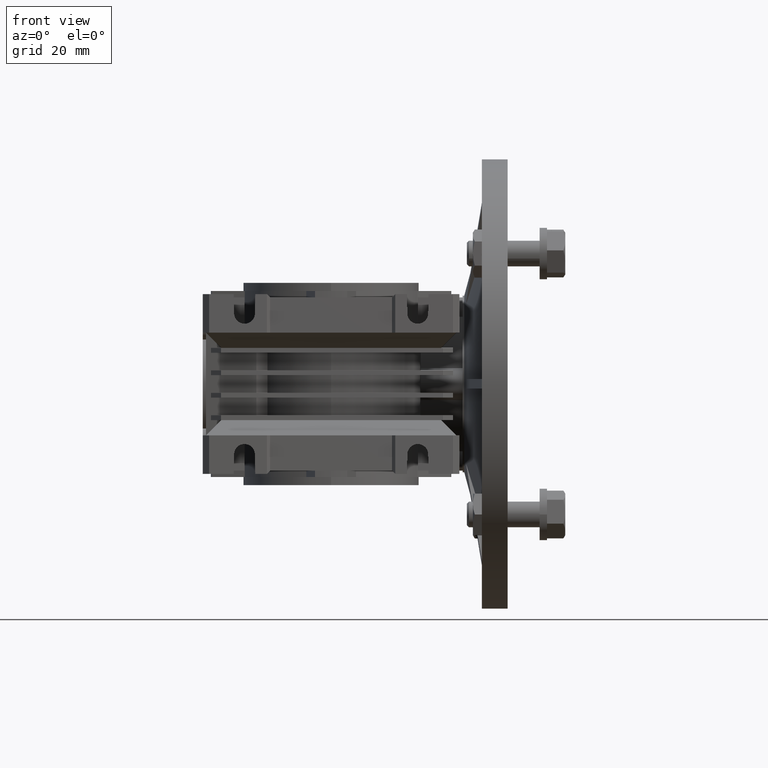
[diagram: clean part render]
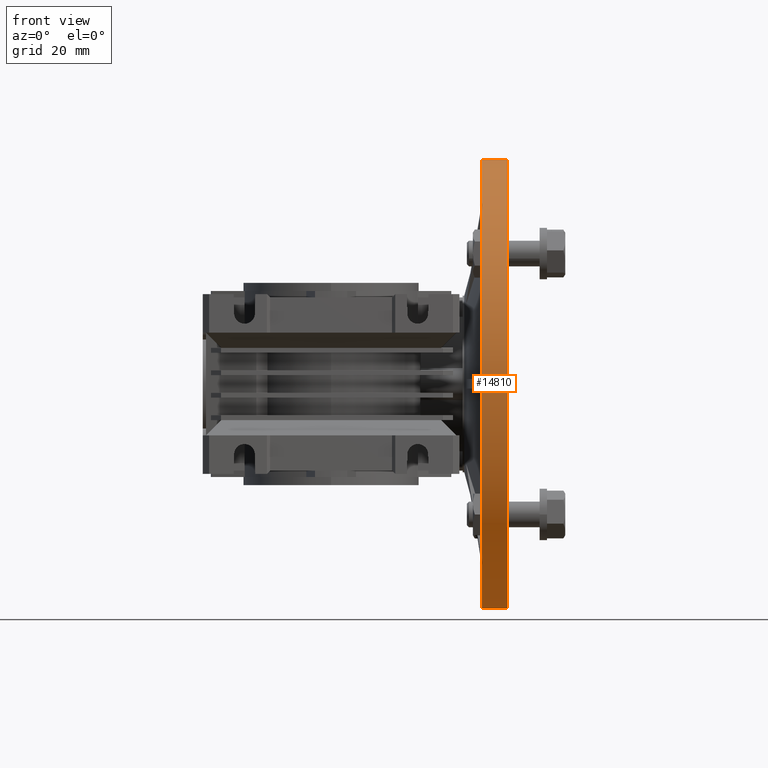
[diagram: same view with one face highlighted and labeled with its STEP entity id]
A machine part, front view. The second image highlights one B-rep face of the part: STEP entity #14810.
In plain terms, the highlighted cylindrical surface (partial cylindrical patch) has radius 70 mm, axis along (-1, 0, 0).
Its self-contained STEP definition (entity closure, byte-faithful):
#659 = AXIS2_PLACEMENT_3D ( 'NONE', #16169, #26061, #10659 ) ;
#1831 = AXIS2_PLACEMENT_3D ( 'NONE', #13651, #14128, #28397 ) ;
#3561 = CARTESIAN_POINT ( 'NONE',  ( 55.00000000000000711, 30.00000000000000000, 70.00000000000000000 ) ) ;
#4909 = CARTESIAN_POINT ( 'NONE',  ( 47.00000000000000000, 30.00000000000000711, -70.00000000000000000 ) ) ;
#5457 = VERTEX_POINT ( 'NONE', #29016 ) ;
#6257 = CYLINDRICAL_SURFACE ( 'NONE', #659, 70.00000000000000000 ) ;
#8261 = LINE ( 'NONE', #30963, #30219 ) ;
#8713 = FACE_OUTER_BOUND ( 'NONE', #9855, .T. ) ;
#9704 = DIRECTION ( 'NONE',  ( 0.000000000000000000, 0.000000000000000000, 1.000000000000000000 ) ) ;
#9855 = EDGE_LOOP ( 'NONE', ( #25734, #19893, #13643, #22945 ) ) ;
#10252 = VERTEX_POINT ( 'NONE', #4909 ) ;
#10659 = DIRECTION ( 'NONE',  ( 0.000000000000000000, 0.000000000000000000, 1.000000000000000000 ) ) ;
#11178 = DIRECTION ( 'NONE',  ( -1.000000000000000000, 0.000000000000000000, 0.000000000000000000 ) ) ;
#11203 = EDGE_CURVE ( 'NONE', #29980, #5457, #24642, .T. ) ;
#11843 = CARTESIAN_POINT ( 'NONE',  ( 47.00000000000000000, 30.00000000000000000, 0.000000000000000000 ) ) ;
#13643 = ORIENTED_EDGE ( 'NONE', *, *, #15336, .T. ) ;
#13651 = CARTESIAN_POINT ( 'NONE',  ( 55.00000000000000711, 30.00000000000000000, 0.000000000000000000 ) ) ;
#14128 = DIRECTION ( 'NONE',  ( -1.000000000000000000, 0.000000000000000000, 0.000000000000000000 ) ) ;
#14173 = CIRCLE ( 'NONE', #29181, 70.00000000000000000 ) ;
#14810 = ADVANCED_FACE ( 'NONE', ( #8713 ), #6257, .T. ) ;
#15266 = CARTESIAN_POINT ( 'NONE',  ( 55.00000000000000711, 30.00000000000000711, -70.00000000000000000 ) ) ;
#15336 = EDGE_CURVE ( 'NONE', #5457, #27187, #25475, .T. ) ;
#16169 = CARTESIAN_POINT ( 'NONE',  ( 55.00000000000000711, 30.00000000000000000, 0.000000000000000000 ) ) ;
#16232 = DIRECTION ( 'NONE',  ( -1.000000000000000000, 0.000000000000000000, 0.000000000000000000 ) ) ;
#16865 = EDGE_CURVE ( 'NONE', #29980, #10252, #8261, .T. ) ;
#17480 = DIRECTION ( 'NONE',  ( 1.000000000000000000, 0.000000000000000000, 0.000000000000000000 ) ) ;
#19266 = VECTOR ( 'NONE', #16232, 1000.000000000000000 ) ;
#19893 = ORIENTED_EDGE ( 'NONE', *, *, #11203, .T. ) ;
#22945 = ORIENTED_EDGE ( 'NONE', *, *, #31269, .T. ) ;
#24642 = CIRCLE ( 'NONE', #1831, 70.00000000000000000 ) ;
#25475 = LINE ( 'NONE', #3561, #19266 ) ;
#25734 = ORIENTED_EDGE ( 'NONE', *, *, #16865, .F. ) ;
#26061 = DIRECTION ( 'NONE',  ( -1.000000000000000000, 0.000000000000000000, 0.000000000000000000 ) ) ;
#26091 = CARTESIAN_POINT ( 'NONE',  ( 47.00000000000000000, 30.00000000000000000, 70.00000000000000000 ) ) ;
#27187 = VERTEX_POINT ( 'NONE', #26091 ) ;
#28397 = DIRECTION ( 'NONE',  ( 0.000000000000000000, 0.000000000000000000, 1.000000000000000000 ) ) ;
#29016 = CARTESIAN_POINT ( 'NONE',  ( 55.00000000000000711, 30.00000000000000000, 70.00000000000000000 ) ) ;
#29181 = AXIS2_PLACEMENT_3D ( 'NONE', #11843, #17480, #9704 ) ;
#29980 = VERTEX_POINT ( 'NONE', #15266 ) ;
#30219 = VECTOR ( 'NONE', #11178, 1000.000000000000000 ) ;
#30963 = CARTESIAN_POINT ( 'NONE',  ( 55.00000000000000711, 30.00000000000000711, -70.00000000000000000 ) ) ;
#31269 = EDGE_CURVE ( 'NONE', #27187, #10252, #14173, .T. ) ;